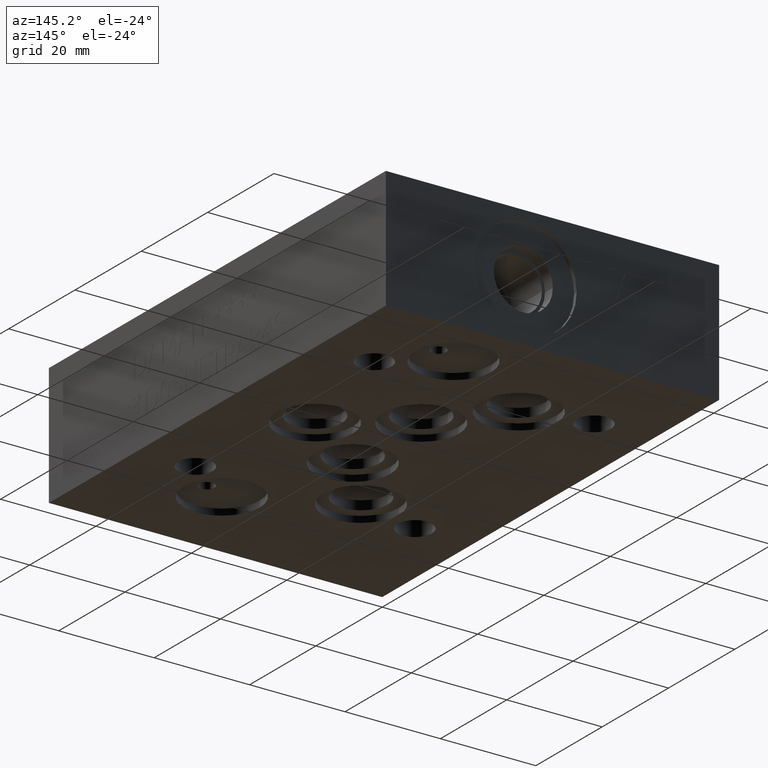
[diagram: clean part render]
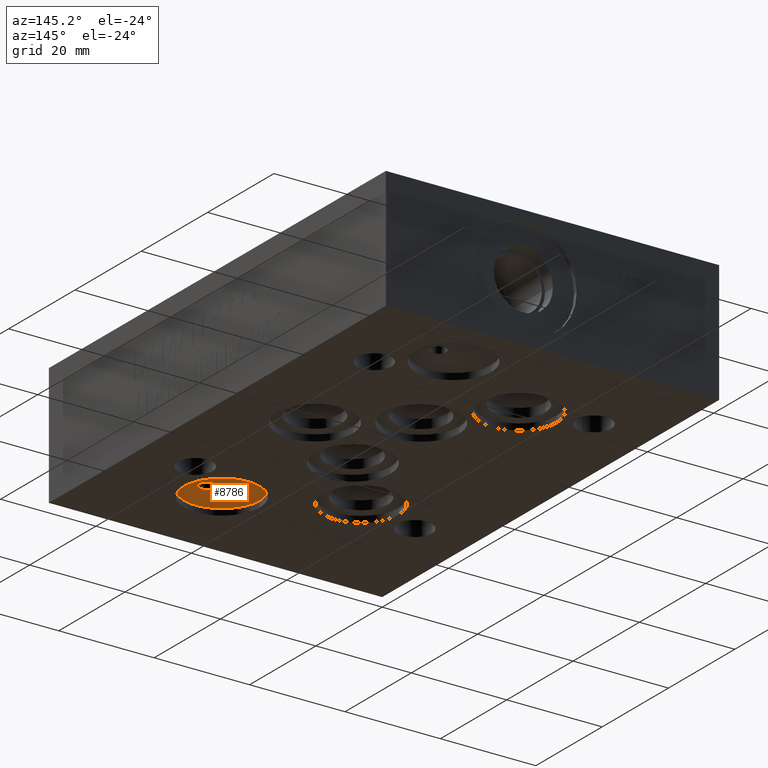
[diagram: same view with one face highlighted and labeled with its STEP entity id]
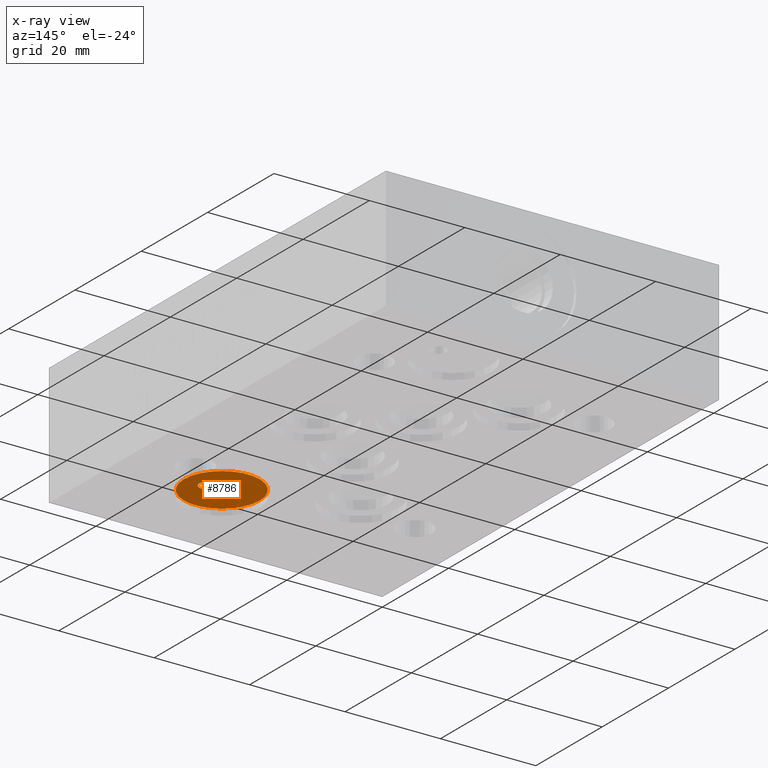
[diagram: x-ray of the same camera — body ghosted, the highlighted face saturated]
A machine part, auxiliary view. The second image highlights one B-rep face of the part: STEP entity #8786.
The next image is the same camera in x-ray: the body ghosted, the highlighted face saturated — about 0% of this face is hidden behind the body in this view.
In plain terms, the highlighted planar face has unit normal (0, 0, -1).
Its self-contained STEP definition (entity closure, byte-faithful):
#95=CIRCLE('',#9193,7.9375);
#96=CIRCLE('',#9195,1.5875);
#191=FACE_BOUND('',#1437,.T.);
#516=PLANE('',#9194);
#935=FACE_OUTER_BOUND('',#1436,.T.);
#1436=EDGE_LOOP('',(#7694));
#1437=EDGE_LOOP('',(#7695));
#4283=VERTEX_POINT('',#14546);
#4284=VERTEX_POINT('',#14550);
#5440=EDGE_CURVE('',#4283,#4283,#95,.T.);
#5441=EDGE_CURVE('',#4284,#4284,#96,.T.);
#7694=ORIENTED_EDGE('',*,*,#5440,.T.);
#7695=ORIENTED_EDGE('',*,*,#5441,.F.);
#8786=ADVANCED_FACE('',(#935,#191),#516,.T.);
#9193=AXIS2_PLACEMENT_3D('',#14548,#10858,#10859);
#9194=AXIS2_PLACEMENT_3D('',#14549,#10860,#10861);
#9195=AXIS2_PLACEMENT_3D('',#14551,#10862,#10863);
#10858=DIRECTION('center_axis',(0.,0.,-1.));
#10859=DIRECTION('ref_axis',(1.,0.,0.));
#10860=DIRECTION('center_axis',(0.,0.,-1.));
#10861=DIRECTION('ref_axis',(1.,0.,0.));
#10862=DIRECTION('center_axis',(0.,0.,-1.));
#10863=DIRECTION('ref_axis',(1.,0.,0.));
#14546=CARTESIAN_POINT('',(38.9255,19.0754,1.3208));
#14548=CARTESIAN_POINT('Origin',(46.863,19.0754,1.3208));
#14549=CARTESIAN_POINT('Origin',(46.863,19.0754,1.3208));
#14550=CARTESIAN_POINT('',(48.4251,19.05,1.3208));
#14551=CARTESIAN_POINT('Origin',(50.0126,19.05,1.3208));